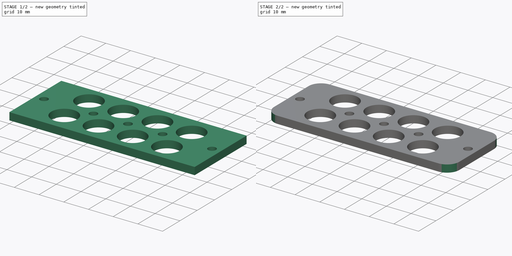
[diagram: build sequence overview — one tinted view per stage of 2, left to right]
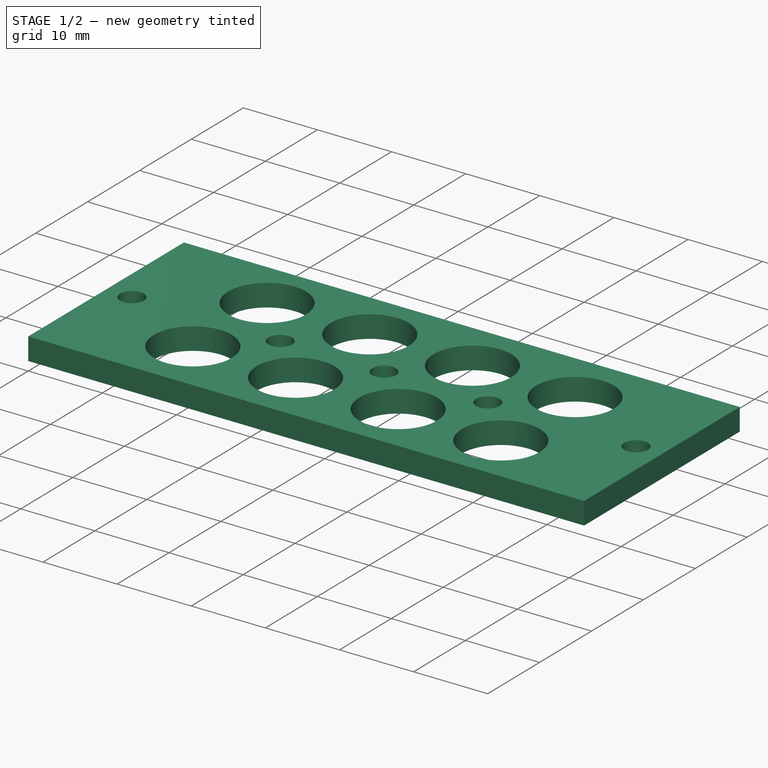
[diagram: stage 1 of 2 — iso view after this stage's code; geometry added in this stage tinted green]
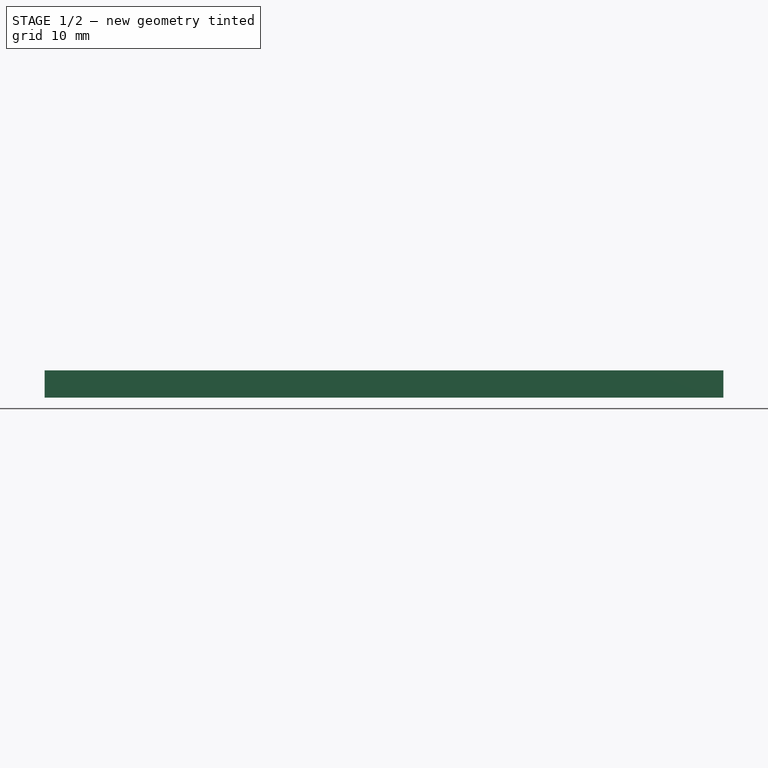
[diagram: stage 1 of 2 — front view after this stage's code; geometry added in this stage tinted green]
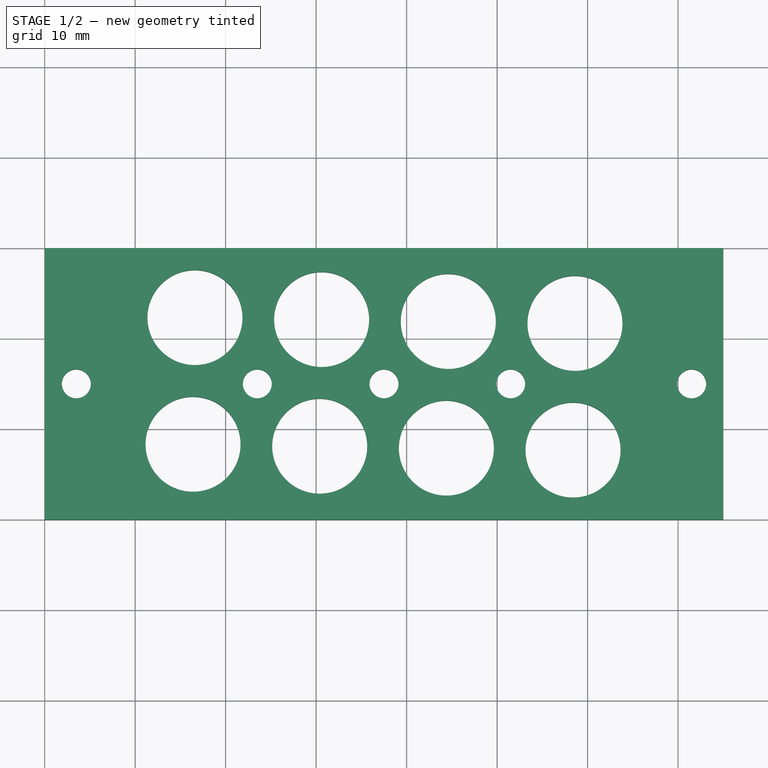
[diagram: stage 1 of 2 — top view after this stage's code; geometry added in this stage tinted green]
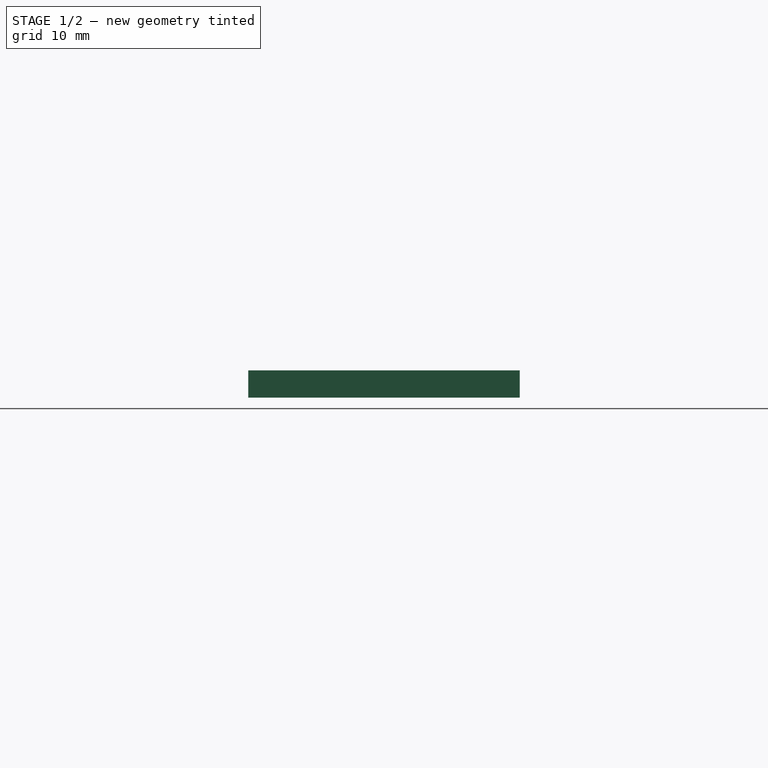
[diagram: stage 1 of 2 — right view after this stage's code; geometry added in this stage tinted green]
FCSTD DOCUMENT  (FreeCAD 0.19.2R1_voidlinux)
Label: RcaAdapter4
License: All rights reserved
LicenseURL: http://en.wikipedia.org/wiki/All_rights_reserved
objects: Sketcher::SketchObject×1, PartDesign::Pad×1, PartDesign::Fillet×1, PartDesign::Body×1
note: 6 computed .brp shape members not serialized (recipe doc carries the construction recipe); baked Part::Feature solids carry a one-line shape summary decoded from their .brp

FEATURE [Sketcher::SketchObject] Sketch
  FullyConstrained = true
  MapMode = 5
  Support = -> [XY_Plane]
  sketch-geometry (26):
    g0: LineSegment StartX=0 StartY=0 StartZ=0 EndX=75 EndY=0 EndZ=0
    g1: LineSegment StartX=75 StartY=0 StartZ=0 EndX=75 EndY=30 EndZ=0
    g2: LineSegment StartX=75 StartY=30 StartZ=0 EndX=0 EndY=30 EndZ=0
    g3: LineSegment StartX=0 StartY=30 StartZ=0 EndX=0 EndY=0 EndZ=0
    g4: Circle CenterX=16.6091 CenterY=22.319 CenterZ=0 NormalX=0 NormalY=0 NormalZ=1 AngleXU=0 Radius=5.25
    g5: GeomPoint X=37.5 Y=15 Z=0
    g6: Circle CenterX=37.5 CenterY=15 CenterZ=0 NormalX=0 NormalY=0 NormalZ=1 AngleXU=0 Radius=1.6
    g7: LineSegment StartX=0 StartY=15 StartZ=0 EndX=75 EndY=15 EndZ=0
    g8: Circle CenterX=3.5 CenterY=15 CenterZ=0 NormalX=0 NormalY=0 NormalZ=1 AngleXU=0 Radius=1.6
    g9: Circle CenterX=71.5 CenterY=15 CenterZ=0 NormalX=0 NormalY=0 NormalZ=1 AngleXU=0 Radius=1.6
    g10: Circle CenterX=23.5 CenterY=15 CenterZ=0 NormalX=0 NormalY=0 NormalZ=1 AngleXU=0 Radius=1.6
    g11: Circle CenterX=51.5 CenterY=15 CenterZ=0 NormalX=0 NormalY=0 NormalZ=1 AngleXU=0 Radius=1.6
    g12: Circle CenterX=30.6074 CenterY=22.1058 CenterZ=0 NormalX=0 NormalY=0 NormalZ=1 AngleXU=0 Radius=5.25
    g13: LineSegment StartX=16.6091 StartY=22.319 StartZ=0 EndX=30.6074 EndY=22.1058 EndZ=0
    g14: Circle CenterX=44.6058 CenterY=21.8926 CenterZ=0 NormalX=0 NormalY=0 NormalZ=1 AngleXU=0 Radius=5.25
    g15: LineSegment StartX=30.6074 StartY=22.1058 StartZ=0 EndX=44.6058 EndY=21.8926 EndZ=0
    g16: Circle CenterX=58.6042 CenterY=21.6793 CenterZ=0 NormalX=0 NormalY=0 NormalZ=1 AngleXU=0 Radius=5.25
    g17: LineSegment StartX=44.6058 StartY=21.8926 StartZ=0 EndX=58.6042 EndY=21.6793 EndZ=0
    g18: Circle CenterX=16.3958 CenterY=8.32067 CenterZ=0 NormalX=0 NormalY=0 NormalZ=1 AngleXU=0 Radius=5.25
    g19: LineSegment StartX=16.6091 StartY=22.319 StartZ=0 EndX=16.3958 EndY=8.32067 EndZ=0
    g20: Circle CenterX=30.3942 CenterY=8.10743 CenterZ=0 NormalX=0 NormalY=0 NormalZ=1 AngleXU=0 Radius=5.25
    g21: LineSegment StartX=16.3958 StartY=8.32067 StartZ=0 EndX=30.3942 EndY=8.10743 EndZ=0
    g22: Circle CenterX=44.3926 CenterY=7.89419 CenterZ=0 NormalX=0 NormalY=0 NormalZ=1 AngleXU=0 Radius=5.25
    g23: LineSegment StartX=30.3942 StartY=8.10743 StartZ=0 EndX=44.3926 EndY=7.89419 EndZ=0
    g24: Circle CenterX=58.3909 CenterY=7.68096 CenterZ=0 NormalX=0 NormalY=0 NormalZ=1 AngleXU=0 Radius=5.25
    g25: LineSegment StartX=44.3926 StartY=7.89419 StartZ=0 EndX=58.3909 EndY=7.68096 EndZ=0
  constraints (64):
    c: Coincident(g0,g1)
    c: Coincident(g1,g2)
    c: Coincident(g2,g3)
    c: Coincident(g3,g0)
    c: Horizontal(g0)
    c: Horizontal(g2)
    c: Vertical(g1)
    c: Vertical(g3)
    c: Coincident(g0,g-1)
    c: DistanceX(g2,g2) = 75
    c: Symmetric(g2,g0,g5)
    c: DistanceY(g1,g1) = 30
    c: Coincident(g6,g5)
    c: Diameter(g6) = 3.2
    c: PointOnObject(g7,g1)
    c: Horizontal(g7)
    c: Symmetric(g2,g0,g7)
    c: PointOnObject(g8,g7)
    c: Equal(g6,g9)
    c: Equal(g6,g8)
    c: Symmetric(g8,g9,g6)
    c: DistanceX(g8,g9) = 68
    c: PointOnObject(g10,g7)
    c: Equal(g10,g6)
    c: Equal(g6,g11)
    c: Symmetric(g10,g11,g6)
    c: DistanceX(g10,g11) = 28
    c: Diameter(g4) = 10.5
    c: Diameter(g12) = 10.5
    c: Coincident(g4,g13)
    c: Coincident(g12,g13)
    c: Distance(g13) = 14
    c: Angle(g13) = -0.0152318
    c: Diameter(g14) = 10.5
    c: Coincident(g12,g15)
    c: Coincident(g14,g15)
    c: Equal(g13,g15)
    c: Parallel(g15,g13)
    c: Diameter(g16) = 10.5
    c: Coincident(g14,g17)
    c: Coincident(g16,g17)
    c: Equal(g13,g17)
    c: Parallel(g17,g13)
    c: Diameter(g18) = 10.5
    c: Coincident(g4,g19)
    c: Coincident(g18,g19)
    c: Equal(g19,g13)
    c: Perpendicular(g19,g13)
    c: Diameter(g20) = 10.5
    c: Coincident(g18,g21)
    c: Coincident(g20,g21)
    c: Equal(g13,g21)
    c: Parallel(g21,g13)
    c: Diameter(g22) = 10.5
    c: Coincident(g20,g23)
    c: Coincident(g22,g23)
    c: Equal(g13,g23)
    c: Parallel(g23,g13)
    c: Diameter(g24) = 10.5
    c: Coincident(g22,g25)
    c: Coincident(g24,g25)
    c: Equal(g13,g25)
    c: Parallel(g25,g13)
    c: Symmetric(g14,g20,g6)
FEATURE [PartDesign::Pad] Pad
  Direction = (1,1,1)
  Length = 3
  Length2 = 100
  Profile = -> Sketch
  Type = 0
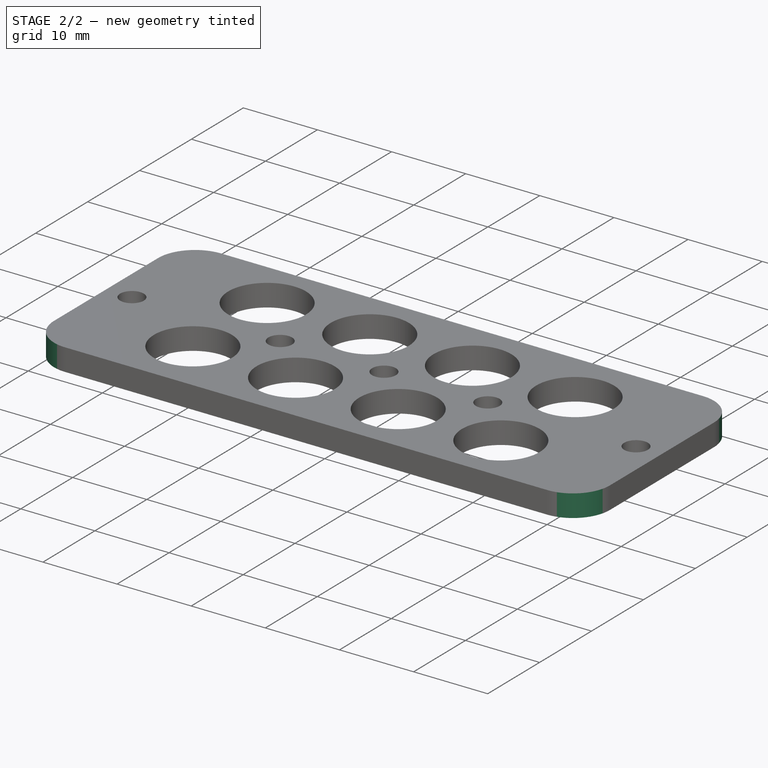
[diagram: stage 2 of 2 — iso view after this stage's code; geometry added in this stage tinted green]
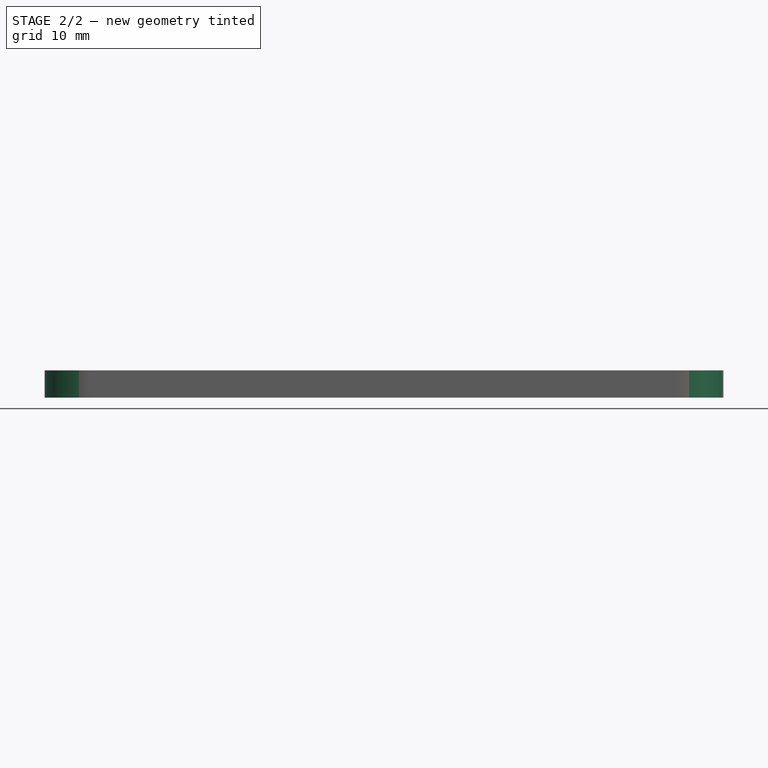
[diagram: stage 2 of 2 — front view after this stage's code; geometry added in this stage tinted green]
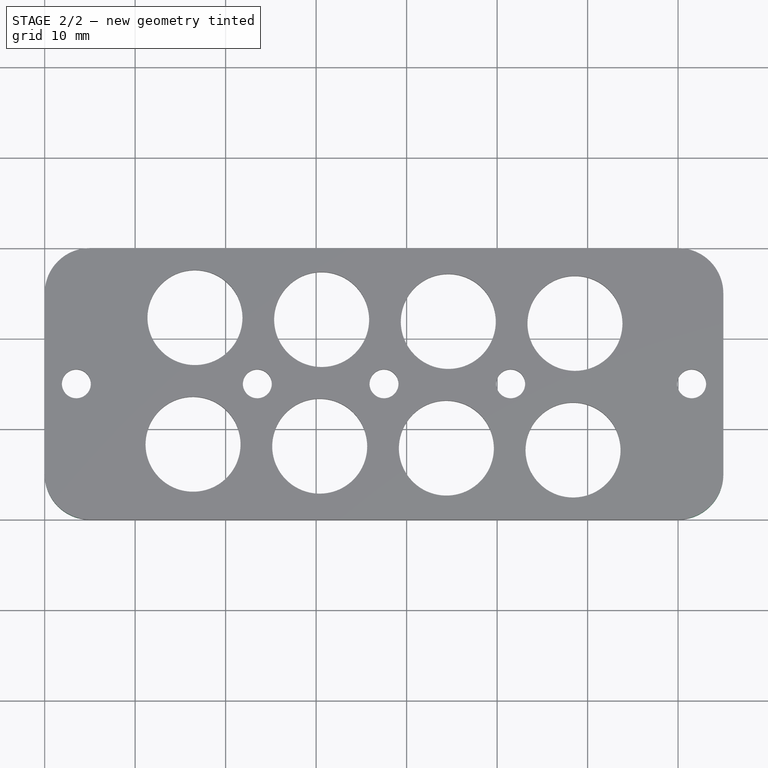
[diagram: stage 2 of 2 — top view after this stage's code; geometry added in this stage tinted green]
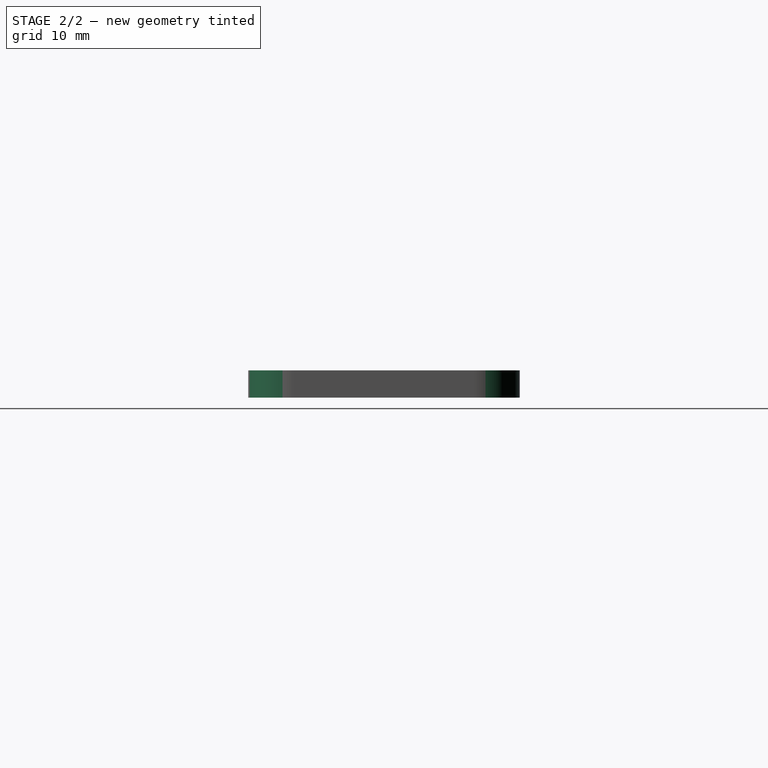
[diagram: stage 2 of 2 — right view after this stage's code; geometry added in this stage tinted green]
FEATURE [PartDesign::Fillet] Fillet
  Base = -> Pad [Edge1,Edge2,Edge5,Edge8]
  BaseFeature = -> Pad
  Radius = 5
  SupportTransform = false
FEATURE [PartDesign::Body] Body
  Group = -> [Sketch,Pad,Fillet]
  Origin = -> Origin
  Tip = -> Fillet
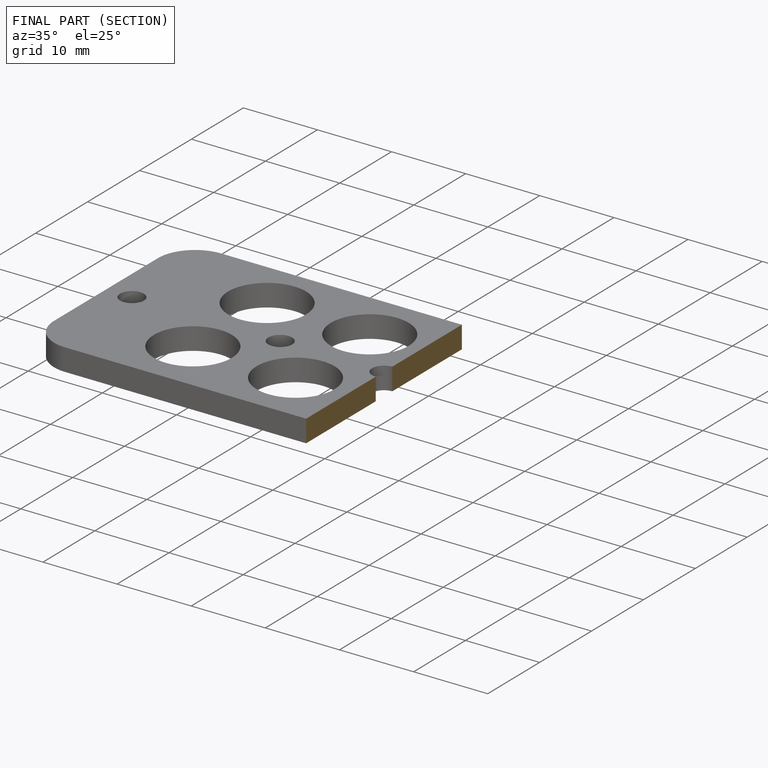
[diagram: finished part — half-section view (interior)]
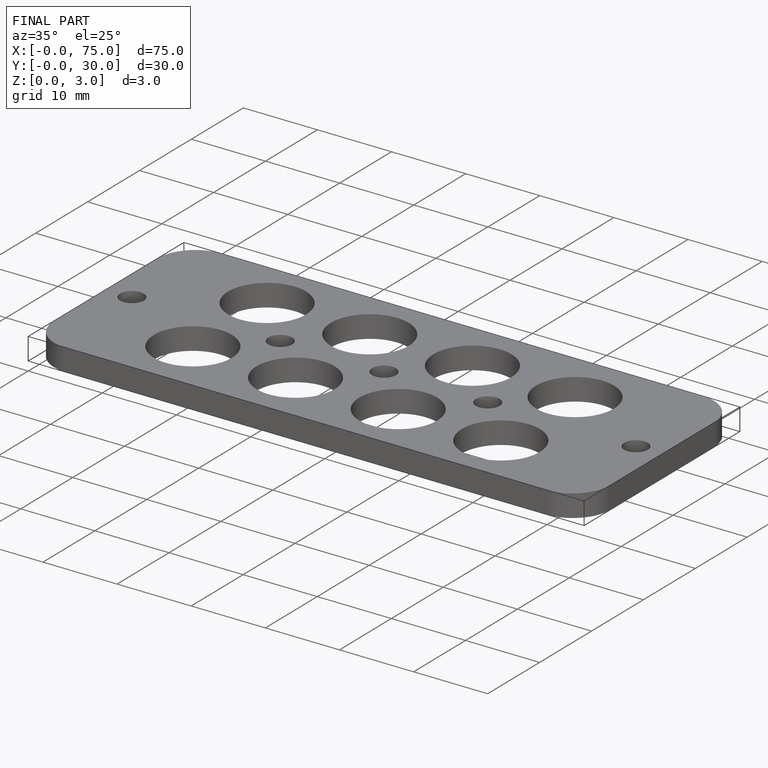
[diagram: finished part — iso view with bounding-box wireframe]
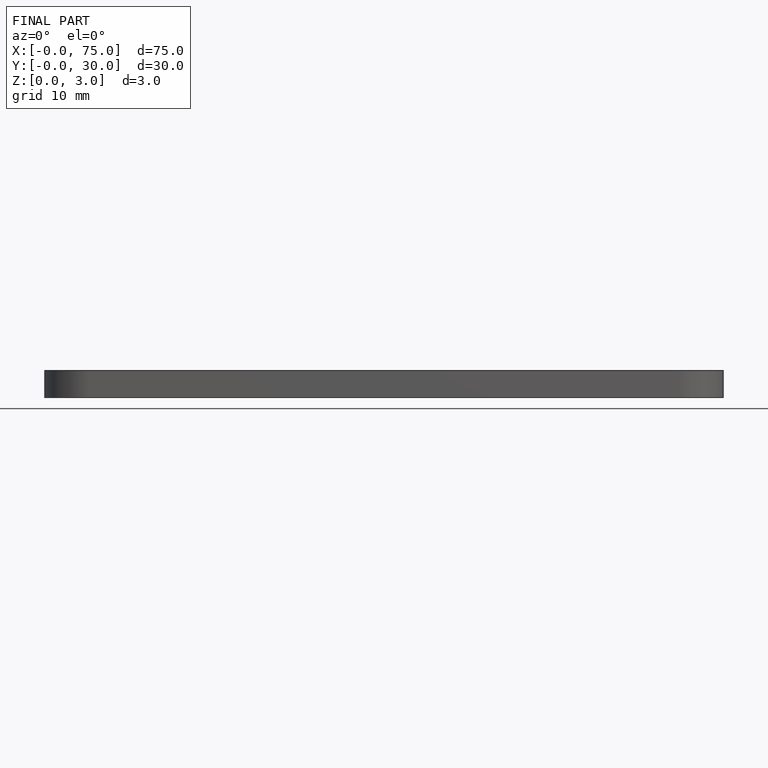
[diagram: finished part — front view with bounding-box wireframe]
